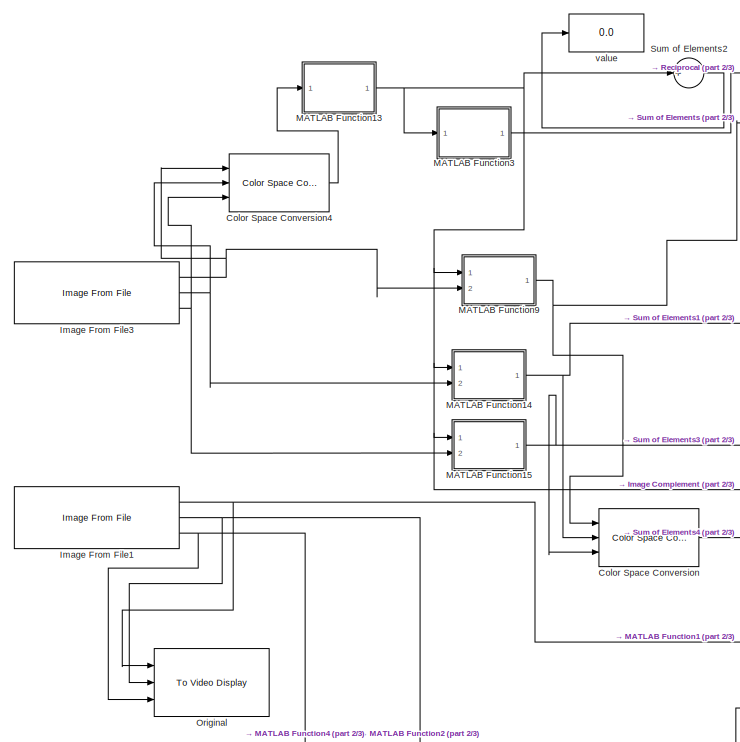
[diagram: root canvas - part 1/3, top left region]
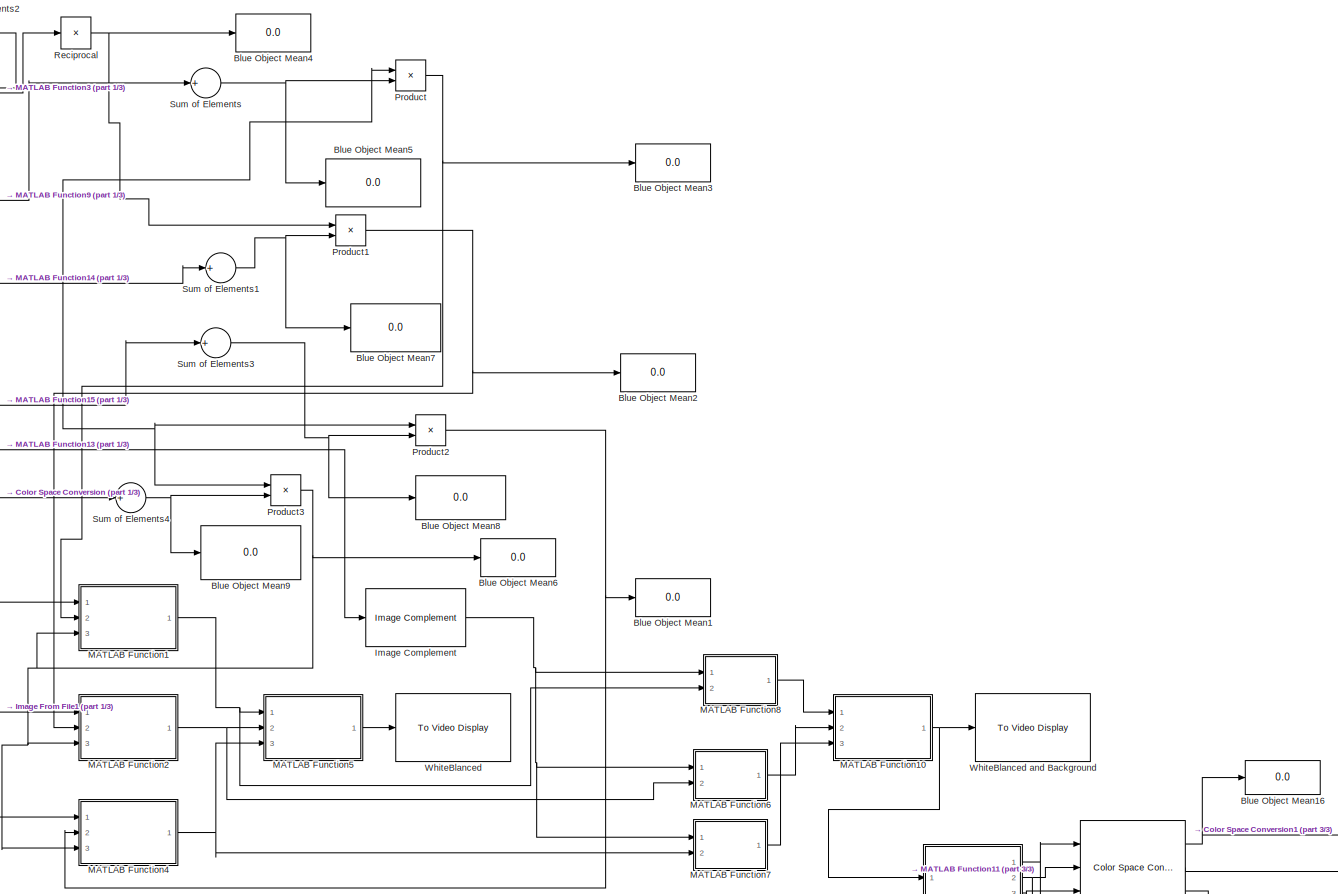
[diagram: root canvas - part 2/3, top center region]
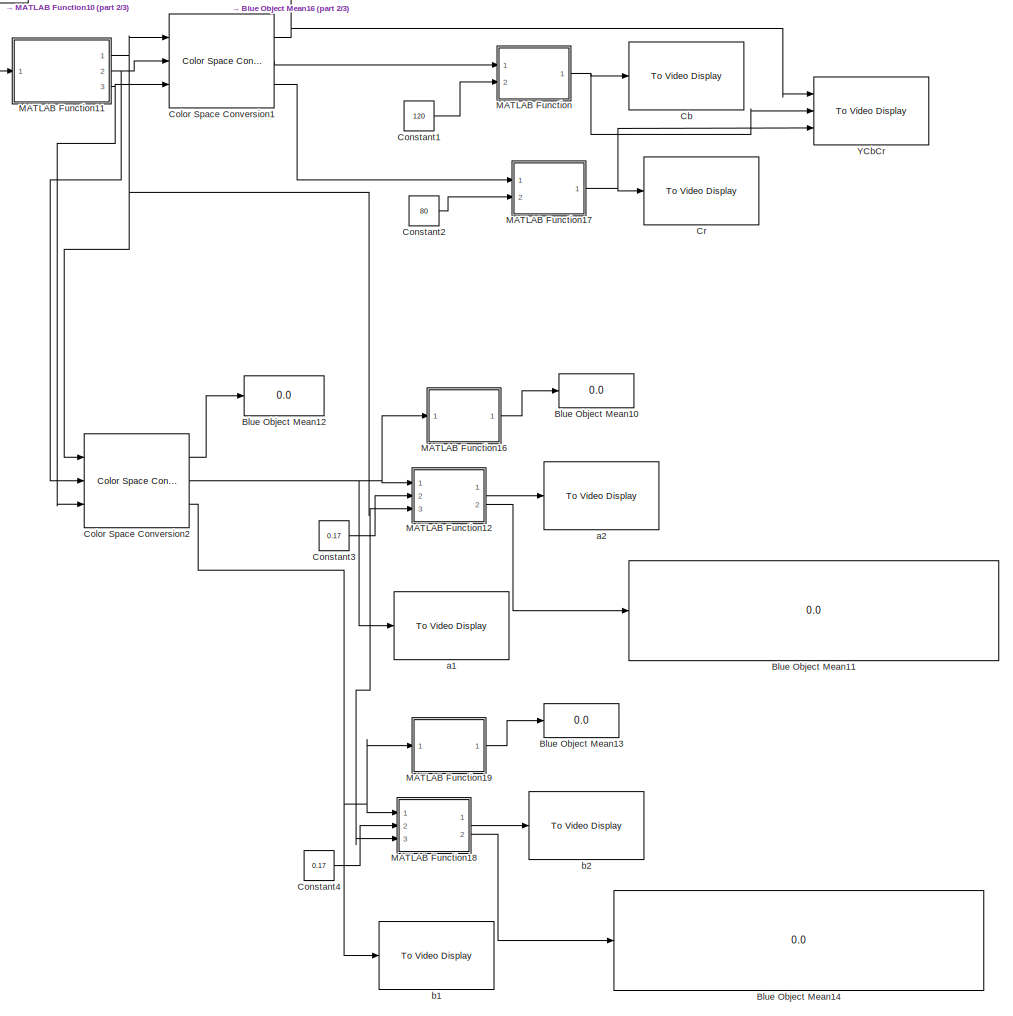
[diagram: root canvas - part 3/3, bottom right region]
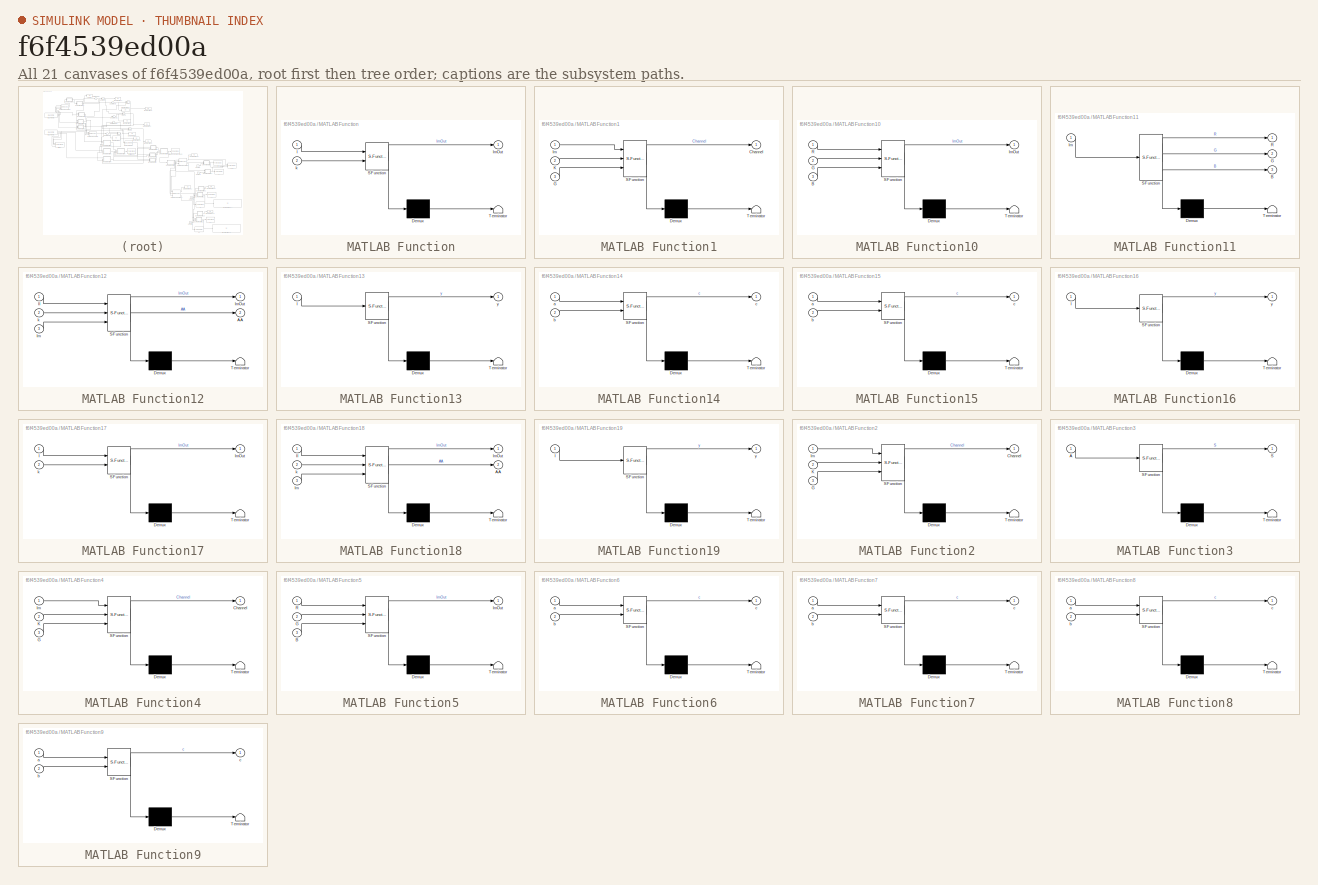
[diagram: thumbnail index - all 21 canvases of the model, root first then tree order]
MODEL slx_f6f4539ed00a
KIND model
CONFIG AbsTol = auto
CONFIG FixedStep = auto
CONFIG MaxStep = auto
CONFIG MinStep = auto
CONFIG RelTol = 1e-3
CONFIG SampleTimeConstraint = Unconstrained
CONFIG Solver = VariableStepAuto
CONFIG SolverMode = Auto
CONFIG SolverName = VariableStepAuto
CONFIG StartTime = 0.0
CONFIG StopTime = 10.0
BLOCK [Display] Blue Object Mean1
  Decimation = 1
  Ports = [1]
BLOCK [Display] Blue Object Mean10
  Decimation = 1
  Ports = [1]
BLOCK [Display] Blue Object Mean11
  Decimation = 1
  Ports = [1]
BLOCK [Display] Blue Object Mean12
  Decimation = 1
  Format = long
  Ports = [1]
BLOCK [Display] Blue Object Mean13
  Decimation = 1
  Ports = [1]
BLOCK [Display] Blue Object Mean14
  Decimation = 1
  Ports = [1]
BLOCK [Display] Blue Object Mean16
  Decimation = 1
  Ports = [1]
BLOCK [Display] Blue Object Mean2
  Decimation = 1
  Ports = [1]
BLOCK [Display] Blue Object Mean3
  Decimation = 1
  Ports = [1]
BLOCK [Display] Blue Object Mean4
  Decimation = 1
  Ports = [1]
BLOCK [Display] Blue Object Mean5
  Decimation = 1
  Format = long
  Ports = [1]
BLOCK [Display] Blue Object Mean6
  Decimation = 1
  Ports = [1]
BLOCK [Display] Blue Object Mean7
  Decimation = 1
  Format = long
  Ports = [1]
BLOCK [Display] Blue Object Mean8
  Decimation = 1
  Format = long
  Ports = [1]
BLOCK [Display] Blue Object Mean9
  Decimation = 1
  Format = long
  Ports = [1]
BLOCK [Reference] Cb  REF=visionsinks/To Video Display
  Ports = [1]
  SourceBlock = visionsinks/To Video Display
  SourceType = To Video Display
BLOCK [Reference] Color Space Conversion  REF=visionconversions/Color Space
 Conversion
  Ports = [3, 1]
  SourceBlock = visionconversions/Color Space\n Conversion
  SourceType = Color Space Conversion
BLOCK [Reference] Color Space Conversion1  REF=visionconversions/Color Space
 Conversion
  Ports = [3, 3]
  SourceBlock = visionconversions/Color Space\n Conversion
  SourceType = Color Space Conversion
BLOCK [Reference] Color Space Conversion2  REF=visionconversions/Color Space
 Conversion
  Ports = [3, 3]
  SourceBlock = visionconversions/Color Space\n Conversion
  SourceType = Color Space Conversion
BLOCK [Reference] Color Space Conversion4  REF=visionconversions/Color Space
 Conversion
  Ports = [3, 1]
  SourceBlock = visionconversions/Color Space\n Conversion
  SourceType = Color Space Conversion
BLOCK [Constant] Constant1
  Value = 120
BLOCK [Constant] Constant2
  Value = 80
BLOCK [Constant] Constant3
  OutDataTypeStr = double
  Value = 0.17
BLOCK [Constant] Constant4
  OutDataTypeStr = double
  Value = 0.17
BLOCK [Reference] Cr  REF=visionsinks/To Video Display
  Ports = [1]
  SourceBlock = visionsinks/To Video Display
  SourceType = To Video Display
BLOCK [Reference] Image Complement  REF=visionconversions/Image Complement
  Ports = [1, 1]
  SourceBlock = visionconversions/Image Complement
  SourceType = Image Complement
BLOCK [Reference] Image From File1  REF=visionsources/Image From File
  Ports = [0, 3]
  SourceBlock = visionsources/Image From File
  SourceType = Image From File
  Tag = vipblks_nd
BLOCK [Reference] Image From File3  REF=visionsources/Image From File
  Ports = [0, 3]
  SourceBlock = visionsources/Image From File
  SourceType = Image From File
  Tag = vipblks_nd
BLOCK [SubSystem] MATLAB Function
  ErrorFcn = Stateflow.Translate.translate
  PermitHierarchicalResolution = ExplicitOnly
  Ports = [2, 1]
  RequestExecContextInheritance = off
  SFBlockType = MATLAB Function
  TreatAsAtomicUnit = on
  Variant = off
BLOCK [Demux] MATLAB Function/ Demux 
  Outputs = 1
  Ports = [1, 1]
BLOCK [S-Function] MATLAB Function/ SFunction 
  EnableBusSupport = on
  FunctionName = sf_sfun
  PortCounts = [2 2]
  Ports = [2, 2]
  SFunctionDeploymentMode = off
  Tag = Stateflow S-Function YCrCb_Lab_WithBackgroundRemove_Threshoding 17
BLOCK [Terminator] MATLAB Function/ Terminator 
BLOCK [Inport] MATLAB Function/I
  IconDisplay = Port number
BLOCK [Outport] MATLAB Function/ImOut
  IconDisplay = Port number
BLOCK [Inport] MATLAB Function/k
  IconDisplay = Port number
  Port = 2
BLOCK [SubSystem] MATLAB Function1
  ErrorFcn = Stateflow.Translate.translate
  PermitHierarchicalResolution = ExplicitOnly
  Ports = [3, 1]
  RequestExecContextInheritance = off
  SFBlockType = MATLAB Function
  TreatAsAtomicUnit = on
  Variant = off
BLOCK [Demux] MATLAB Function1/ Demux 
  Outputs = 1
  Ports = [1, 1]
BLOCK [S-Function] MATLAB Function1/ SFunction 
  EnableBusSupport = on
  FunctionName = sf_sfun
  PortCounts = [3 2]
  Ports = [3, 2]
  SFunctionDeploymentMode = off
  Tag = Stateflow S-Function YCrCb_Lab_WithBackgroundRemove_Threshoding 1
BLOCK [Terminator] MATLAB Function1/ Terminator 
BLOCK [Outport] MATLAB Function1/Channel
  IconDisplay = Port number
BLOCK [Inport] MATLAB Function1/G
  IconDisplay = Port number
  Port = 3
BLOCK [Inport] MATLAB Function1/Im
  IconDisplay = Port number
BLOCK [Inport] MATLAB Function1/K
  IconDisplay = Port number
  Port = 2
BLOCK [SubSystem] MATLAB Function10
  ErrorFcn = Stateflow.Translate.translate
  PermitHierarchicalResolution = ExplicitOnly
  Ports = [3, 1]
  RequestExecContextInheritance = off
  SFBlockType = MATLAB Function
  TreatAsAtomicUnit = on
  Variant = off
BLOCK [Demux] MATLAB Function10/ Demux 
  Outputs = 1
  Ports = [1, 1]
BLOCK [S-Function] MATLAB Function10/ SFunction 
  EnableBusSupport = on
  FunctionName = sf_sfun
  PortCounts = [3 2]
  Ports = [3, 2]
  SFunctionDeploymentMode = off
  Tag = Stateflow S-Function YCrCb_Lab_WithBackgroundRemove_Threshoding 9
BLOCK [Terminator] MATLAB Function10/ Terminator 
BLOCK [Inport] MATLAB Function10/B
  IconDisplay = Port number
  Port = 3
BLOCK [Inport] MATLAB Function10/G
  IconDisplay = Port number
  Port = 2
BLOCK [Outport] MATLAB Function10/ImOut
  IconDisplay = Port number
BLOCK [Inport] MATLAB Function10/R
  IconDisplay = Port number
BLOCK [SubSystem] MATLAB Function11
  ErrorFcn = Stateflow.Translate.translate
  PermitHierarchicalResolution = ExplicitOnly
  Ports = [1, 3]
  RequestExecContextInheritance = off
  SFBlockType = MATLAB Function
  TreatAsAtomicUnit = on
  Variant = off
BLOCK [Demux] MATLAB Function11/ Demux 
  Outputs = 1
  Ports = [1, 1]
BLOCK [S-Function] MATLAB Function11/ SFunction 
  EnableBusSupport = on
  FunctionName = sf_sfun
  PortCounts = [1 4]
  Ports = [1, 4]
  SFunctionDeploymentMode = off
  Tag = Stateflow S-Function YCrCb_Lab_WithBackgroundRemove_Threshoding 11
BLOCK [Terminator] MATLAB Function11/ Terminator 
BLOCK [Outport] MATLAB Function11/B
  IconDisplay = Port number
  Port = 3
BLOCK [Outport] MATLAB Function11/G
  IconDisplay = Port number
  Port = 2
BLOCK [Inport] MATLAB Function11/Im
  IconDisplay = Port number
BLOCK [Outport] MATLAB Function11/R
  IconDisplay = Port number
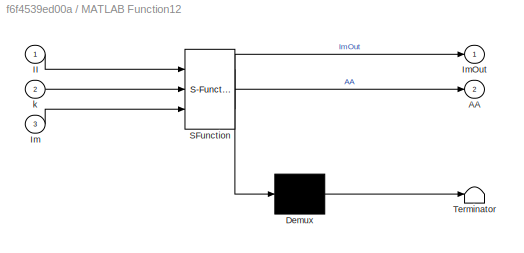
BLOCK [SubSystem] MATLAB Function12
  ErrorFcn = Stateflow.Translate.translate
  PermitHierarchicalResolution = ExplicitOnly
  Ports = [3, 2]
  RequestExecContextInheritance = off
  SFBlockType = MATLAB Function
  TreatAsAtomicUnit = on
  Variant = off
BLOCK [Demux] MATLAB Function12/ Demux 
  Outputs = 1
  Ports = [1, 1]
BLOCK [S-Function] MATLAB Function12/ SFunction 
  EnableBusSupport = on
  FunctionName = sf_sfun
  PortCounts = [3 3]
  Ports = [3, 3]
  SFunctionDeploymentMode = off
  Tag = Stateflow S-Function YCrCb_Lab_WithBackgroundRemove_Threshoding 12
BLOCK [Terminator] MATLAB Function12/ Terminator 
BLOCK [Outport] MATLAB Function12/AA
  IconDisplay = Port number
  Port = 2
BLOCK [Inport] MATLAB Function12/II
  IconDisplay = Port number
BLOCK [Inport] MATLAB Function12/Im
  IconDisplay = Port number
  Port = 3
BLOCK [Outport] MATLAB Function12/ImOut
  IconDisplay = Port number
BLOCK [Inport] MATLAB Function12/k
  IconDisplay = Port number
  Port = 2
BLOCK [SubSystem] MATLAB Function13
  ErrorFcn = Stateflow.Translate.translate
  PermitHierarchicalResolution = ExplicitOnly
  Ports = [1, 1]
  RequestExecContextInheritance = off
  SFBlockType = MATLAB Function
  TreatAsAtomicUnit = on
  Variant = off
BLOCK [Demux] MATLAB Function13/ Demux 
  Outputs = 1
  Ports = [1, 1]
BLOCK [S-Function] MATLAB Function13/ SFunction 
  EnableBusSupport = on
  FunctionName = sf_sfun
  PortCounts = [1 2]
  Ports = [1, 2]
  SFunctionDeploymentMode = off
  Tag = Stateflow S-Function YCrCb_Lab_WithBackgroundRemove_Threshoding 14
BLOCK [Terminator] MATLAB Function13/ Terminator 
BLOCK [Inport] MATLAB Function13/I
  IconDisplay = Port number
BLOCK [Outport] MATLAB Function13/y
  IconDisplay = Port number
BLOCK [SubSystem] MATLAB Function14
  ErrorFcn = Stateflow.Translate.translate
  PermitHierarchicalResolution = ExplicitOnly
  Ports = [2, 1]
  RequestExecContextInheritance = off
  SFBlockType = MATLAB Function
  TreatAsAtomicUnit = on
  Variant = off
BLOCK [Demux] MATLAB Function14/ Demux 
  Outputs = 1
  Ports = [1, 1]
BLOCK [S-Function] MATLAB Function14/ SFunction 
  EnableBusSupport = on
  FunctionName = sf_sfun
  PortCounts = [2 2]
  Ports = [2, 2]
  SFunctionDeploymentMode = off
  Tag = Stateflow S-Function YCrCb_Lab_WithBackgroundRemove_Threshoding 10
BLOCK [Terminator] MATLAB Function14/ Terminator 
BLOCK [Inport] MATLAB Function14/a
  IconDisplay = Port number
BLOCK [Inport] MATLAB Function14/b
  IconDisplay = Port number
  Port = 2
BLOCK [Outport] MATLAB Function14/c
  IconDisplay = Port number
BLOCK [SubSystem] MATLAB Function15
  ErrorFcn = Stateflow.Translate.translate
  PermitHierarchicalResolution = ExplicitOnly
  Ports = [2, 1]
  RequestExecContextInheritance = off
  SFBlockType = MATLAB Function
  TreatAsAtomicUnit = on
  Variant = off
BLOCK [Demux] MATLAB Function15/ Demux 
  Outputs = 1
  Ports = [1, 1]
BLOCK [S-Function] MATLAB Function15/ SFunction 
  EnableBusSupport = on
  FunctionName = sf_sfun
  PortCounts = [2 2]
  Ports = [2, 2]
  SFunctionDeploymentMode = off
  Tag = Stateflow S-Function YCrCb_Lab_WithBackgroundRemove_Threshoding 15
BLOCK [Terminator] MATLAB Function15/ Terminator 
BLOCK [Inport] MATLAB Function15/a
  IconDisplay = Port number
BLOCK [Inport] MATLAB Function15/b
  IconDisplay = Port number
  Port = 2
BLOCK [Outport] MATLAB Function15/c
  IconDisplay = Port number
BLOCK [SubSystem] MATLAB Function16
  ErrorFcn = Stateflow.Translate.translate
  PermitHierarchicalResolution = ExplicitOnly
  Ports = [1, 1]
  RequestExecContextInheritance = off
  SFBlockType = MATLAB Function
  TreatAsAtomicUnit = on
  Variant = off
BLOCK [Demux] MATLAB Function16/ Demux 
  Outputs = 1
  Ports = [1, 1]
BLOCK [S-Function] MATLAB Function16/ SFunction 
  EnableBusSupport = on
  FunctionName = sf_sfun
  PortCounts = [1 2]
  Ports = [1, 2]
  SFunctionDeploymentMode = off
  Tag = Stateflow S-Function YCrCb_Lab_WithBackgroundRemove_Threshoding 13
BLOCK [Terminator] MATLAB Function16/ Terminator 
BLOCK [Inport] MATLAB Function16/I
  IconDisplay = Port number
BLOCK [Outport] MATLAB Function16/y
  IconDisplay = Port number
BLOCK [SubSystem] MATLAB Function17
  ErrorFcn = Stateflow.Translate.translate
  PermitHierarchicalResolution = ExplicitOnly
  Ports = [2, 1]
  RequestExecContextInheritance = off
  SFBlockType = MATLAB Function
  TreatAsAtomicUnit = on
  Variant = off
BLOCK [Demux] MATLAB Function17/ Demux 
  Outputs = 1
  Ports = [1, 1]
BLOCK [S-Function] MATLAB Function17/ SFunction 
  EnableBusSupport = on
  FunctionName = sf_sfun
  PortCounts = [2 2]
  Ports = [2, 2]
  SFunctionDeploymentMode = off
  Tag = Stateflow S-Function YCrCb_Lab_WithBackgroundRemove_Threshoding 18
BLOCK [Terminator] MATLAB Function17/ Terminator 
BLOCK [Inport] MATLAB Function17/I
  IconDisplay = Port number
BLOCK [Outport] MATLAB Function17/ImOut
  IconDisplay = Port number
BLOCK [Inport] MATLAB Function17/k
  IconDisplay = Port number
  Port = 2
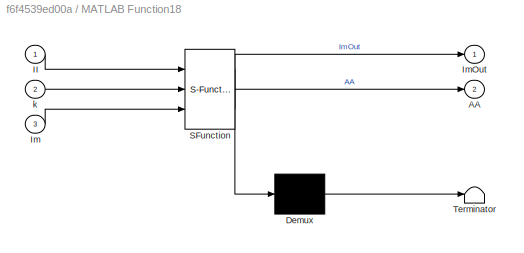
BLOCK [SubSystem] MATLAB Function18
  ErrorFcn = Stateflow.Translate.translate
  PermitHierarchicalResolution = ExplicitOnly
  Ports = [3, 2]
  RequestExecContextInheritance = off
  SFBlockType = MATLAB Function
  TreatAsAtomicUnit = on
  Variant = off
BLOCK [Demux] MATLAB Function18/ Demux 
  Outputs = 1
  Ports = [1, 1]
BLOCK [S-Function] MATLAB Function18/ SFunction 
  EnableBusSupport = on
  FunctionName = sf_sfun
  PortCounts = [3 3]
  Ports = [3, 3]
  SFunctionDeploymentMode = off
  Tag = Stateflow S-Function YCrCb_Lab_WithBackgroundRemove_Threshoding 19
BLOCK [Terminator] MATLAB Function18/ Terminator 
BLOCK [Outport] MATLAB Function18/AA
  IconDisplay = Port number
  Port = 2
BLOCK [Inport] MATLAB Function18/II
  IconDisplay = Port number
BLOCK [Inport] MATLAB Function18/Im
  IconDisplay = Port number
  Port = 3
BLOCK [Outport] MATLAB Function18/ImOut
  IconDisplay = Port number
BLOCK [Inport] MATLAB Function18/k
  IconDisplay = Port number
  Port = 2
BLOCK [SubSystem] MATLAB Function19
  ErrorFcn = Stateflow.Translate.translate
  PermitHierarchicalResolution = ExplicitOnly
  Ports = [1, 1]
  RequestExecContextInheritance = off
  SFBlockType = MATLAB Function
  TreatAsAtomicUnit = on
  Variant = off
BLOCK [Demux] MATLAB Function19/ Demux 
  Outputs = 1
  Ports = [1, 1]
BLOCK [S-Function] MATLAB Function19/ SFunction 
  EnableBusSupport = on
  FunctionName = sf_sfun
  PortCounts = [1 2]
  Ports = [1, 2]
  SFunctionDeploymentMode = off
  Tag = Stateflow S-Function YCrCb_Lab_WithBackgroundRemove_Threshoding 20
BLOCK [Terminator] MATLAB Function19/ Terminator 
BLOCK [Inport] MATLAB Function19/I
  IconDisplay = Port number
BLOCK [Outport] MATLAB Function19/y
  IconDisplay = Port number
BLOCK [SubSystem] MATLAB Function2
  ErrorFcn = Stateflow.Translate.translate
  PermitHierarchicalResolution = ExplicitOnly
  Ports = [3, 1]
  RequestExecContextInheritance = off
  SFBlockType = MATLAB Function
  TreatAsAtomicUnit = on
  Variant = off
BLOCK [Demux] MATLAB Function2/ Demux 
  Outputs = 1
  Ports = [1, 1]
BLOCK [S-Function] MATLAB Function2/ SFunction 
  EnableBusSupport = on
  FunctionName = sf_sfun
  PortCounts = [3 2]
  Ports = [3, 2]
  SFunctionDeploymentMode = off
  Tag = Stateflow S-Function YCrCb_Lab_WithBackgroundRemove_Threshoding 2
BLOCK [Terminator] MATLAB Function2/ Terminator 
BLOCK [Outport] MATLAB Function2/Channel
  IconDisplay = Port number
BLOCK [Inport] MATLAB Function2/G
  IconDisplay = Port number
  Port = 3
BLOCK [Inport] MATLAB Function2/Im
  IconDisplay = Port number
BLOCK [Inport] MATLAB Function2/K
  IconDisplay = Port number
  Port = 2
BLOCK [SubSystem] MATLAB Function3
  ErrorFcn = Stateflow.Translate.translate
  PermitHierarchicalResolution = ExplicitOnly
  Ports = [1, 1]
  RequestExecContextInheritance = off
  SFBlockType = MATLAB Function
  TreatAsAtomicUnit = on
  Variant = off
BLOCK [Demux] MATLAB Function3/ Demux 
  Outputs = 1
  Ports = [1, 1]
BLOCK [S-Function] MATLAB Function3/ SFunction 
  EnableBusSupport = on
  FunctionName = sf_sfun
  PortCounts = [1 2]
  Ports = [1, 2]
  SFunctionDeploymentMode = off
  Tag = Stateflow S-Function YCrCb_Lab_WithBackgroundRemove_Threshoding 3
BLOCK [Terminator] MATLAB Function3/ Terminator 
BLOCK [Inport] MATLAB Function3/A
  IconDisplay = Port number
BLOCK [Outport] MATLAB Function3/S
  IconDisplay = Port number
BLOCK [SubSystem] MATLAB Function4
  ErrorFcn = Stateflow.Translate.translate
  PermitHierarchicalResolution = ExplicitOnly
  Ports = [3, 1]
  RequestExecContextInheritance = off
  SFBlockType = MATLAB Function
  TreatAsAtomicUnit = on
  Variant = off
BLOCK [Demux] MATLAB Function4/ Demux 
  Outputs = 1
  Ports = [1, 1]
BLOCK [S-Function] MATLAB Function4/ SFunction 
  EnableBusSupport = on
  FunctionName = sf_sfun
  PortCounts = [3 2]
  Ports = [3, 2]
  SFunctionDeploymentMode = off
  Tag = Stateflow S-Function YCrCb_Lab_WithBackgroundRemove_Threshoding 4
BLOCK [Terminator] MATLAB Function4/ Terminator 
BLOCK [Outport] MATLAB Function4/Channel
  IconDisplay = Port number
BLOCK [Inport] MATLAB Function4/G
  IconDisplay = Port number
  Port = 3
BLOCK [Inport] MATLAB Function4/Im
  IconDisplay = Port number
BLOCK [Inport] MATLAB Function4/K
  IconDisplay = Port number
  Port = 2
BLOCK [SubSystem] MATLAB Function5
  ErrorFcn = Stateflow.Translate.translate
  PermitHierarchicalResolution = ExplicitOnly
  Ports = [3, 1]
  RequestExecContextInheritance = off
  SFBlockType = MATLAB Function
  TreatAsAtomicUnit = on
  Variant = off
BLOCK [Demux] MATLAB Function5/ Demux 
  Outputs = 1
  Ports = [1, 1]
BLOCK [S-Function] MATLAB Function5/ SFunction 
  EnableBusSupport = on
  FunctionName = sf_sfun
  PortCounts = [3 2]
  Ports = [3, 2]
  SFunctionDeploymentMode = off
  Tag = Stateflow S-Function YCrCb_Lab_WithBackgroundRemove_Threshoding 5
BLOCK [Terminator] MATLAB Function5/ Terminator 
BLOCK [Inport] MATLAB Function5/B
  IconDisplay = Port number
  Port = 3
BLOCK [Inport] MATLAB Function5/G
  IconDisplay = Port number
  Port = 2
BLOCK [Outport] MATLAB Function5/ImOut
  IconDisplay = Port number
BLOCK [Inport] MATLAB Function5/R
  IconDisplay = Port number
BLOCK [SubSystem] MATLAB Function6
  ErrorFcn = Stateflow.Translate.translate
  PermitHierarchicalResolution = ExplicitOnly
  Ports = [2, 1]
  RequestExecContextInheritance = off
  SFBlockType = MATLAB Function
  TreatAsAtomicUnit = on
  Variant = off
BLOCK [Demux] MATLAB Function6/ Demux 
  Outputs = 1
  Ports = [1, 1]
BLOCK [S-Function] MATLAB Function6/ SFunction 
  EnableBusSupport = on
  FunctionName = sf_sfun
  PortCounts = [2 2]
  Ports = [2, 2]
  SFunctionDeploymentMode = off
  Tag = Stateflow S-Function YCrCb_Lab_WithBackgroundRemove_Threshoding 6
BLOCK [Terminator] MATLAB Function6/ Terminator 
BLOCK [Inport] MATLAB Function6/a
  IconDisplay = Port number
BLOCK [Inport] MATLAB Function6/b
  IconDisplay = Port number
  Port = 2
BLOCK [Outport] MATLAB Function6/c
  IconDisplay = Port number
BLOCK [SubSystem] MATLAB Function7
  ErrorFcn = Stateflow.Translate.translate
  PermitHierarchicalResolution = ExplicitOnly
  Ports = [2, 1]
  RequestExecContextInheritance = off
  SFBlockType = MATLAB Function
  TreatAsAtomicUnit = on
  Variant = off
BLOCK [Demux] MATLAB Function7/ Demux 
  Outputs = 1
  Ports = [1, 1]
BLOCK [S-Function] MATLAB Function7/ SFunction 
  EnableBusSupport = on
  FunctionName = sf_sfun
  PortCounts = [2 2]
  Ports = [2, 2]
  SFunctionDeploymentMode = off
  Tag = Stateflow S-Function YCrCb_Lab_WithBackgroundRemove_Threshoding 7
BLOCK [Terminator] MATLAB Function7/ Terminator 
BLOCK [Inport] MATLAB Function7/a
  IconDisplay = Port number
BLOCK [Inport] MATLAB Function7/b
  IconDisplay = Port number
  Port = 2
BLOCK [Outport] MATLAB Function7/c
  IconDisplay = Port number
BLOCK [SubSystem] MATLAB Function8
  ErrorFcn = Stateflow.Translate.translate
  PermitHierarchicalResolution = ExplicitOnly
  Ports = [2, 1]
  RequestExecContextInheritance = off
  SFBlockType = MATLAB Function
  TreatAsAtomicUnit = on
  Variant = off
BLOCK [Demux] MATLAB Function8/ Demux 
  Outputs = 1
  Ports = [1, 1]
BLOCK [S-Function] MATLAB Function8/ SFunction 
  EnableBusSupport = on
  FunctionName = sf_sfun
  PortCounts = [2 2]
  Ports = [2, 2]
  SFunctionDeploymentMode = off
  Tag = Stateflow S-Function YCrCb_Lab_WithBackgroundRemove_Threshoding 8
BLOCK [Terminator] MATLAB Function8/ Terminator 
BLOCK [Inport] MATLAB Function8/a
  IconDisplay = Port number
BLOCK [Inport] MATLAB Function8/b
  IconDisplay = Port number
  Port = 2
BLOCK [Outport] MATLAB Function8/c
  IconDisplay = Port number
BLOCK [SubSystem] MATLAB Function9
  ErrorFcn = Stateflow.Translate.translate
  PermitHierarchicalResolution = ExplicitOnly
  Ports = [2, 1]
  RequestExecContextInheritance = off
  SFBlockType = MATLAB Function
  TreatAsAtomicUnit = on
  Variant = off
BLOCK [Demux] MATLAB Function9/ Demux 
  Outputs = 1
  Ports = [1, 1]
BLOCK [S-Function] MATLAB Function9/ SFunction 
  EnableBusSupport = on
  FunctionName = sf_sfun
  PortCounts = [2 2]
  Ports = [2, 2]
  SFunctionDeploymentMode = off
  Tag = Stateflow S-Function YCrCb_Lab_WithBackgroundRemove_Threshoding 16
BLOCK [Terminator] MATLAB Function9/ Terminator 
BLOCK [Inport] MATLAB Function9/a
  IconDisplay = Port number
BLOCK [Inport] MATLAB Function9/b
  IconDisplay = Port number
  Port = 2
BLOCK [Outport] MATLAB Function9/c
  IconDisplay = Port number
BLOCK [Reference] Original  REF=visionsinks/To Video Display
  Ports = [3]
  SourceBlock = visionsinks/To Video Display
  SourceType = To Video Display
BLOCK [Product] Product
  InputSameDT = off
  OutDataTypeStr = uint8
  Ports = [2, 1]
  RndMeth = Floor
  SaturateOnIntegerOverflow = off
BLOCK [Product] Product1
  InputSameDT = off
  OutDataTypeStr = uint8
  Ports = [2, 1]
  RndMeth = Floor
  SaturateOnIntegerOverflow = off
BLOCK [Product] Product2
  InputSameDT = off
  OutDataTypeStr = uint8
  Ports = [2, 1]
  RndMeth = Floor
  SaturateOnIntegerOverflow = off
BLOCK [Product] Product3
  InputSameDT = off
  OutDataTypeStr = uint8
  Ports = [2, 1]
  RndMeth = Floor
  SaturateOnIntegerOverflow = off
BLOCK [Product] Reciprocal
  InputSameDT = off
  Inputs = /
  OutDataTypeStr = double
  Ports = [1, 1]
BLOCK [Sum] Sum of Elements
  InputSameDT = off
  Inputs = +
  OutDataTypeStr = Inherit: Inherit via internal rule
  Ports = [1, 1]
  SaturateOnIntegerOverflow = off
BLOCK [Sum] Sum of Elements1
  InputSameDT = off
  Inputs = +
  OutDataTypeStr = Inherit: Inherit via internal rule
  Ports = [1, 1]
  SaturateOnIntegerOverflow = off
BLOCK [Sum] Sum of Elements2
  InputSameDT = off
  Inputs = +
  OutDataTypeStr = Inherit: Inherit via internal rule
  Ports = [1, 1]
  SaturateOnIntegerOverflow = off
BLOCK [Sum] Sum of Elements3
  InputSameDT = off
  Inputs = +
  OutDataTypeStr = Inherit: Inherit via internal rule
  Ports = [1, 1]
  SaturateOnIntegerOverflow = off
BLOCK [Sum] Sum of Elements4
  InputSameDT = off
  Inputs = +
  OutDataTypeStr = Inherit: Inherit via internal rule
  Ports = [1, 1]
  SaturateOnIntegerOverflow = off
BLOCK [Reference] WhiteBlanced  REF=visionsinks/To Video Display
  Ports = [1]
  SourceBlock = visionsinks/To Video Display
  SourceType = To Video Display
BLOCK [Reference] WhiteBlanced and Background  REF=visionsinks/To Video Display
  Ports = [1]
  SourceBlock = visionsinks/To Video Display
  SourceType = To Video Display
BLOCK [Reference] YCbCr  REF=visionsinks/To Video Display
  Ports = [3]
  SourceBlock = visionsinks/To Video Display
  SourceType = To Video Display
BLOCK [Reference] a1  REF=visionsinks/To Video Display
  Ports = [1]
  SourceBlock = visionsinks/To Video Display
  SourceType = To Video Display
BLOCK [Reference] a2  REF=visionsinks/To Video Display
  Ports = [1]
  SourceBlock = visionsinks/To Video Display
  SourceType = To Video Display
BLOCK [Reference] b1  REF=visionsinks/To Video Display
  Ports = [1]
  SourceBlock = visionsinks/To Video Display
  SourceType = To Video Display
BLOCK [Reference] b2  REF=visionsinks/To Video Display
  Ports = [1]
  SourceBlock = visionsinks/To Video Display
  SourceType = To Video Display
BLOCK [Display] value
  Decimation = 1
  Ports = [1]
NET Color Space Conversion1:1 -> Blue Object Mean16:1, YCbCr:1
LINE Color Space Conversion1:2 -> MATLAB Function:1
LINE Color Space Conversion1:3 -> MATLAB Function17:1
LINE Color Space Conversion2:1 -> Blue Object Mean12:1
NET Color Space Conversion2:2 -> MATLAB Function12:1, MATLAB Function16:1, a1:1
NET Color Space Conversion2:3 -> MATLAB Function18:1, MATLAB Function19:1, b1:1
LINE Color Space Conversion4:1 -> MATLAB Function13:1
LINE Color Space Conversion:1 -> Sum of Elements4:1
LINE Constant1:1 -> MATLAB Function:2
LINE Constant2:1 -> MATLAB Function17:2
LINE Constant3:1 -> MATLAB Function12:2
LINE Constant4:1 -> MATLAB Function18:2
NET Image Complement:1 -> MATLAB Function6:1, MATLAB Function7:1, MATLAB Function8:1
NET Image From File1:1 -> MATLAB Function1:1, Original:1
NET Image From File1:2 -> MATLAB Function2:1, Original:2
NET Image From File1:3 -> MATLAB Function4:1, Original:3
NET Image From File3:1 -> Color Space Conversion4:1, MATLAB Function9:2
NET Image From File3:2 -> Color Space Conversion4:2, MATLAB Function14:2
NET Image From File3:3 -> Color Space Conversion4:3, MATLAB Function15:2
NET MATLAB Function10:1 -> MATLAB Function11:1, WhiteBlanced and Background:1
NET MATLAB Function11:1 -> Color Space Conversion1:1, Color Space Conversion2:1, MATLAB Function12:3, MATLAB Function18:3
NET MATLAB Function11:2 -> Color Space Conversion1:2, Color Space Conversion2:2
NET MATLAB Function11:3 -> Color Space Conversion1:3, Color Space Conversion2:3
LINE MATLAB Function12:1 -> a2:1
LINE MATLAB Function12:2 -> Blue Object Mean11:1
NET MATLAB Function13:1 -> Image Complement:1, MATLAB Function14:1, MATLAB Function15:1, MATLAB Function3:1, MATLAB Function9:1, Sum of Elements2:1
NET MATLAB Function14:1 -> Color Space Conversion:2, Sum of Elements1:1
NET MATLAB Function15:1 -> Color Space Conversion:3, Sum of Elements3:1
LINE MATLAB Function16:1 -> Blue Object Mean10:1
NET MATLAB Function17:1 -> Cr:1, YCbCr:3
LINE MATLAB Function18:1 -> b2:1
LINE MATLAB Function18:2 -> Blue Object Mean14:1
LINE MATLAB Function19:1 -> Blue Object Mean13:1
NET MATLAB Function1:1 -> MATLAB Function5:1, MATLAB Function8:2
NET MATLAB Function2:1 -> MATLAB Function5:2, MATLAB Function6:2
LINE MATLAB Function3:1 -> Reciprocal:1
NET MATLAB Function4:1 -> MATLAB Function5:3, MATLAB Function7:2
LINE MATLAB Function5:1 -> WhiteBlanced:1
LINE MATLAB Function6:1 -> MATLAB Function10:2
LINE MATLAB Function7:1 -> MATLAB Function10:3
LINE MATLAB Function8:1 -> MATLAB Function10:1
NET MATLAB Function9:1 -> Color Space Conversion:1, Sum of Elements:1
NET MATLAB Function:1 -> Cb:1, YCbCr:2
NET Product1:1 -> Blue Object Mean2:1, MATLAB Function2:2
NET Product2:1 -> Blue Object Mean1:1, MATLAB Function4:2
NET Product3:1 -> Blue Object Mean6:1, MATLAB Function1:3, MATLAB Function2:3, MATLAB Function4:3
NET Product:1 -> Blue Object Mean3:1, MATLAB Function1:2
NET Reciprocal:1 -> Blue Object Mean4:1, Product1:1, Product2:1, Product3:1, Product:1
NET Sum of Elements1:1 -> Blue Object Mean7:1, Product1:2
LINE Sum of Elements2:1 -> value:1
NET Sum of Elements3:1 -> Blue Object Mean8:1, Product2:2
NET Sum of Elements4:1 -> Blue Object Mean9:1, Product3:2
NET Sum of Elements:1 -> Blue Object Mean5:1, Product:2
note: NET lines group one-source signal fan-out (src -> all destinations, sorted); 1:1 wires keep LINE
CHART MATLAB Function1 states=1 transitions=1
  STATE_LABEL 'eML_blk_kernel()'
  STATE_LABEL 'SCRIPT:\nfunction Channel = fcn(Im,K,G)\nChannel = uint8(double(Im) *double(G)/double(K));\nreturn'
CHART MATLAB Function2 states=1 transitions=1
  STATE_LABEL 'eML_blk_kernel()'
  STATE_LABEL 'SCRIPT:\nfunction Channel = fcn(Im,K,G)\nChannel = uint8(double(Im) *double(G)/double(K));\nreturn'
CHART MATLAB Function3 states=1 transitions=1
  STATE_LABEL 'eML_blk_kernel()'
  STATE_LABEL 'SCRIPT:\nfunction S = fcn(A)\n%#codegen\nS = sum(A(:))/100;'
CHART MATLAB Function4 states=1 transitions=1
  STATE_LABEL 'eML_blk_kernel()'
  STATE_LABEL 'SCRIPT:\nfunction Channel = fcn(Im,K,G)\nChannel = uint8(double(Im) *double(G)/double(K));\nreturn'
CHART MATLAB Function5 states=1 transitions=1
  STATE_LABEL 'eML_blk_kernel()'
  STATE_LABEL 'SCRIPT:\nfunction ImOut = fcn(R,G,B)\nImOut = cat(3, R, G, B);\nreturn'
CHART MATLAB Function6 states=1 transitions=1
  STATE_LABEL 'eML_blk_kernel()'
  STATE_LABEL 'SCRIPT:\nfunction c = fcn(a,b)\n%#codegen\n%c=logical(a).*double(b);\nc=uint8(a).*uint8(b);'
CHART MATLAB Function7 states=1 transitions=1
  STATE_LABEL 'eML_blk_kernel()'
  STATE_LABEL 'SCRIPT:\nfunction c = fcn(a,b)\n%#codegen\n%c=logical(a).*double(b);\nc=uint8(a).*uint8(b);'
CHART MATLAB Function8 states=1 transitions=1
  STATE_LABEL 'eML_blk_kernel()'
  STATE_LABEL 'SCRIPT:\nfunction c = fcn(a,b)\n%#codegen\nc=uint8(a).*uint8(b);\n%c=uint8(b);'
CHART MATLAB Function10 states=1 transitions=1
  STATE_LABEL 'eML_blk_kernel()'
  STATE_LABEL 'SCRIPT:\nfunction ImOut = fcn(R,G,B)\nImOut = cat(3, R, G, B);\nreturn'
CHART MATLAB Function14 states=1 transitions=1
  STATE_LABEL 'eML_blk_kernel()'
  STATE_LABEL 'SCRIPT:\nfunction c = fcn(a,b)\n%#codegen\nc=a.*b;\nreturn'
CHART MATLAB Function11 states=1 transitions=1
  STATE_LABEL 'eML_blk_kernel()'
  STATE_LABEL 'SCRIPT:\nfunction [R,G,B] = fcn(Im)\nR = double(Im(:,:,1));\nG = double(Im(:,:,2));\nB = double(Im(:,:,3));\nreturn'
CHART MATLAB Function12 states=1 transitions=1
  STATE_LABEL 'eML_blk_kernel()'
  STATE_LABEL "SCRIPT:\nfunction [ImOut,AA] = fcn(II,k,Im)\nI=double(Im);\ncoder.extrinsic('graythresh');\ncoder.extrinsic('im2bw');\nlevel = graythresh(I);\nBW = im2bw(I,level);\nL=double(I);\ncoder.extrinsic('bwlabeln');\nNUM=1;\nBW2=imcomplement(BW);\n[L, NUM] = bwlabeln(BW2);\narea=1;\nn=1;\nR1=double(II);\nAA=double(zeros(100,1));\ni=1;\nfor n=1:NUM\n    [r, c] = find(L==n);\n    %if (max(c)~= min(c))&&(max(r)~= min(r))\n    i...<+223ch>"
CHART MATLAB Function16 states=1 transitions=1
  STATE_LABEL 'eML_blk_kernel()'
  STATE_LABEL 'SCRIPT:\nfunction y = fcn(I)\ny=mean(I(:));'
CHART MATLAB Function13 states=1 transitions=1
  STATE_LABEL 'eML_blk_kernel()'
  STATE_LABEL "SCRIPT:\nfunction y = fcn(I)\n%#codegen\ny=I;\n coder.extrinsic('graythresh');\nlevel = graythresh(I);\nBW = double(im2bw(I,level));\ny = BW;"
CHART MATLAB Function15 states=1 transitions=1
  STATE_LABEL 'eML_blk_kernel()'
  STATE_LABEL 'SCRIPT:\nfunction c = fcn(a,b)\n%#codegen\nc=a.*b;\nreturn'
CHART MATLAB Function9 states=1 transitions=1
  STATE_LABEL 'eML_blk_kernel()'
  STATE_LABEL 'SCRIPT:\nfunction c = fcn(a,b)\n%#codegen\nc=a.*b;\nreturn'
CHART MATLAB Function states=1 transitions=1
  STATE_LABEL 'eML_blk_kernel()'
  STATE_LABEL "SCRIPT:\nfunction ImOut = fcn(I,k)\ncoder.extrinsic('graythresh');\ncoder.extrinsic('im2bw');\nlevel = graythresh(I);\nBW = im2bw(I,level);\nL=double(I);\ncoder.extrinsic('bwlabeln');\nNUM=1;\nBW2=imcomplement(BW);\n[L, NUM] = bwlabeln(BW2);\narea=1;\nn=1;\nR1=I;\nAA=(zeros(8,1));\ni=1;\nfor n=1:NUM\n    [r, c] = find(L==n);\n    %if (max(c)~= min(c))&&(max(r)~= min(r))\n    if ((max(c)-min(c))>50)&&((max(r)-min(r))...<+186ch>"
CHART MATLAB Function17 states=1 transitions=1
  STATE_LABEL 'eML_blk_kernel()'
  STATE_LABEL "SCRIPT:\nfunction ImOut = fcn(I,k)\ncoder.extrinsic('graythresh');\ncoder.extrinsic('im2bw');\nlevel = graythresh(I);\nBW = im2bw(I,level);\nL=double(I);\ncoder.extrinsic('bwlabeln');\nNUM=1;\nBW2=imcomplement(BW);\n[L, NUM] = bwlabeln(BW2);\narea=1;\nn=1;\nR1=I;\nAA=(zeros(8,1));\ni=1;\nfor n=1:NUM\n    [r, c] = find(L==n);\n    %if (max(c)~= min(c))&&(max(r)~= min(r))\n    if ((max(c)-min(c))>50)&&((max(r)-min(r))...<+186ch>"
CHART MATLAB Function18 states=1 transitions=1
  STATE_LABEL 'eML_blk_kernel()'
  STATE_LABEL "SCRIPT:\nfunction [ImOut,AA] = fcn(II,k,Im)\nI=Im;\ncoder.extrinsic('graythresh');\ncoder.extrinsic('im2bw');\nlevel = graythresh(I);\nBW = im2bw(I,level);\nL=double(I);\ncoder.extrinsic('bwlabeln');\nNUM=1;\nBW2=imcomplement(BW);\n[L, NUM] = bwlabeln(BW2);\narea=1;\nn=1;\nR1=double(II);\nAA=double(zeros(100,1));\ni=1;\nfor n=1:NUM\n    [r, c] = find(L==n);\n    %if (max(c)~= min(c))&&(max(r)~= min(r))\n    if ((max(...<+207ch>"
CHART MATLAB Function19 states=1 transitions=1
  STATE_LABEL 'eML_blk_kernel()'
  STATE_LABEL 'SCRIPT:\nfunction y = fcn(I)\ny=mean(I(:));'
